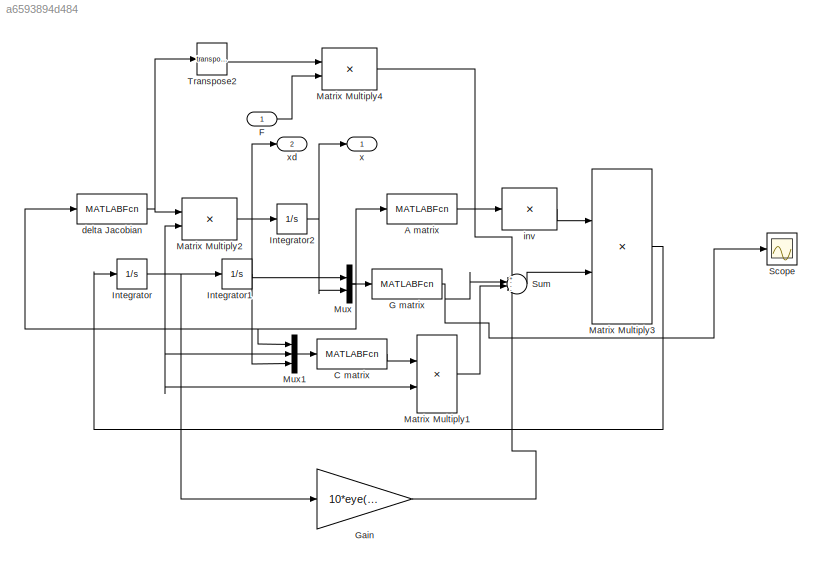
MODEL slx_a6593894d484
KIND model
CONFIG AbsTol = auto
CONFIG EnableMultiTasking = off
CONFIG FixedStep = auto
CONFIG MaxStep = auto
CONFIG MinStep = auto
CONFIG RelTol = 1e-3
CONFIG SampleTimeConstraint = Unconstrained
CONFIG Solver = ode23t
CONFIG SolverName = ode23t
CONFIG StartTime = 0.0
CONFIG StopTime = 10.0
BLOCK [MATLABFcn] A matrix
  MATLABFcn = Amatrix(u)
  Output1D = off
  Ports = [1, 1]
BLOCK [MATLABFcn] C matrix
  MATLABFcn = Cmatrix(u)
  Output1D = off
  Ports = [1, 1]
BLOCK [Inport] F
  IconDisplay = Port number
  PortDimensions = 3
BLOCK [MATLABFcn] G matrix
  MATLABFcn = Gmatrix(u)
  Output1D = off
  OutputDimensions = 3
  Ports = [1, 1]
BLOCK [Gain] Gain
  Gain = 10*eye(3)
  Multiplication = Matrix(K*u)
  OutDataTypeStr = Inherit: Inherit via internal rule
  ParamDataTypeStr = Inherit: Inherit via internal rule
  SaturateOnIntegerOverflow = off
BLOCK [Integrator] Integrator
  InitialCondition = qd0
  Ports = [1, 1]
BLOCK [Integrator] Integrator1
  InitialCondition = q0
  Ports = [1, 1]
BLOCK [Integrator] Integrator2
  InitialCondition = x0
  Ports = [1, 1]
BLOCK [Product] Matrix Multiply1
  InputSameDT = off
  Multiplication = Matrix(*)
  OutDataTypeStr = Inherit: Inherit via internal rule
  Ports = [2, 1]
  RndMeth = Floor
  SaturateOnIntegerOverflow = off
BLOCK [Product] Matrix Multiply2
  InputSameDT = off
  Multiplication = Matrix(*)
  OutDataTypeStr = Inherit: Inherit via internal rule
  Ports = [2, 1]
  RndMeth = Floor
  SaturateOnIntegerOverflow = off
BLOCK [Product] Matrix Multiply3
  InputSameDT = off
  Multiplication = Matrix(*)
  OutDataTypeStr = Inherit: Inherit via internal rule
  Ports = [2, 1]
  RndMeth = Floor
  SaturateOnIntegerOverflow = off
BLOCK [Product] Matrix Multiply4
  InputSameDT = off
  Multiplication = Matrix(*)
  OutDataTypeStr = Inherit: Inherit via internal rule
  Ports = [2, 1]
  RndMeth = Floor
  SaturateOnIntegerOverflow = off
BLOCK [Mux] Mux
  DisplayOption = bar
  Inputs = 2
  Ports = [2, 1]
BLOCK [Mux] Mux1
  DisplayOption = bar
  Inputs = 3
  Ports = [3, 1]
BLOCK [Scope] Scope
  Floating = off
  NumInputPorts = 1
  Ports = [1]
  ScopeSpecificationString = Simulink.scopes.TimeScopeBlockCfg('CurrentConfiguration', extmgr.ConfigurationSet(extmgr.Configuration('Core','General UI',true),extmgr.Configuration('Core','Source UI',true),extmgr.Configuration('Sources','WiredSimulink',true),extmgr.Configuration('Visuals','Time Domain',true,'SerializedDisplays',{struct('MinYLimReal','-1.42728','MaxYLimReal','12.87525','YLabelReal','','MinYLimMag','0.00000','Max...<+1460ch>
BLOCK [Sum] Sum
  IconShape = round
  InputSameDT = off
  Inputs = +---
  OutDataTypeStr = Inherit: Inherit via internal rule
  Ports = [4, 1]
  SaturateOnIntegerOverflow = off
BLOCK [Math] Transpose2
  Operator = transpose
  Ports = [1, 1]
BLOCK [MATLABFcn] delta Jacobian
  MATLABFcn = deltaJacobian(u)
  Output1D = off
  Ports = [1, 1]
BLOCK [Product] inv
  InputSameDT = off
  Inputs = /
  Multiplication = Matrix(*)
  OutDataTypeStr = Inherit: Inherit via internal rule
  Ports = [1, 1]
  RndMeth = Floor
  SaturateOnIntegerOverflow = off
BLOCK [Outport] x
  IconDisplay = Port number
BLOCK [Outport] xd
  IconDisplay = Port number
  Port = 2
LINE A matrix:1 -> inv:1
LINE C matrix:1 -> Matrix Multiply1:1
LINE F:1 -> Matrix Multiply4:2
NET G matrix:1 -> Scope:1, Sum:2
LINE Gain:1 -> Sum:4
LINE Integrator1:1 -> Mux:1
NET Integrator2:1 -> Mux:2, x:1
NET Integrator:1 -> Gain:1, Integrator1:1, Matrix Multiply1:2, Matrix Multiply2:2, Mux1:2
LINE Matrix Multiply1:1 -> Sum:3
NET Matrix Multiply2:1 -> Integrator2:1, Mux1:3, xd:1
LINE Matrix Multiply3:1 -> Integrator:1
LINE Matrix Multiply4:1 -> Sum:1
LINE Mux1:1 -> C matrix:1
NET Mux:1 -> A matrix:1, G matrix:1, Mux1:1, delta Jacobian:1
LINE Sum:1 -> Matrix Multiply3:2
LINE Transpose2:1 -> Matrix Multiply4:1
NET delta Jacobian:1 -> Matrix Multiply2:1, Transpose2:1
LINE inv:1 -> Matrix Multiply3:1
note: NET lines group one-source signal fan-out (src -> all destinations, sorted); 1:1 wires keep LINE
